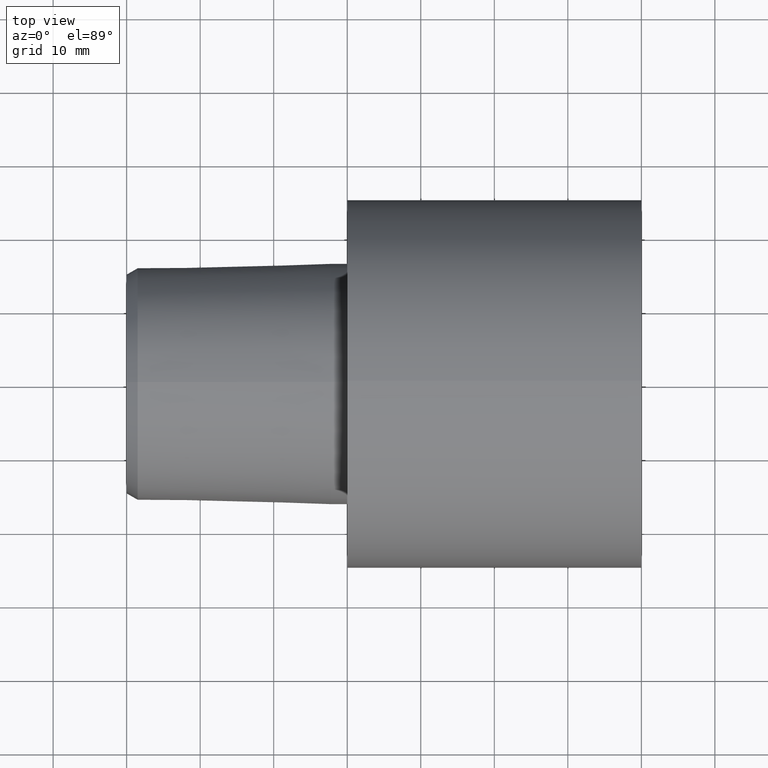
[diagram: clean part render]
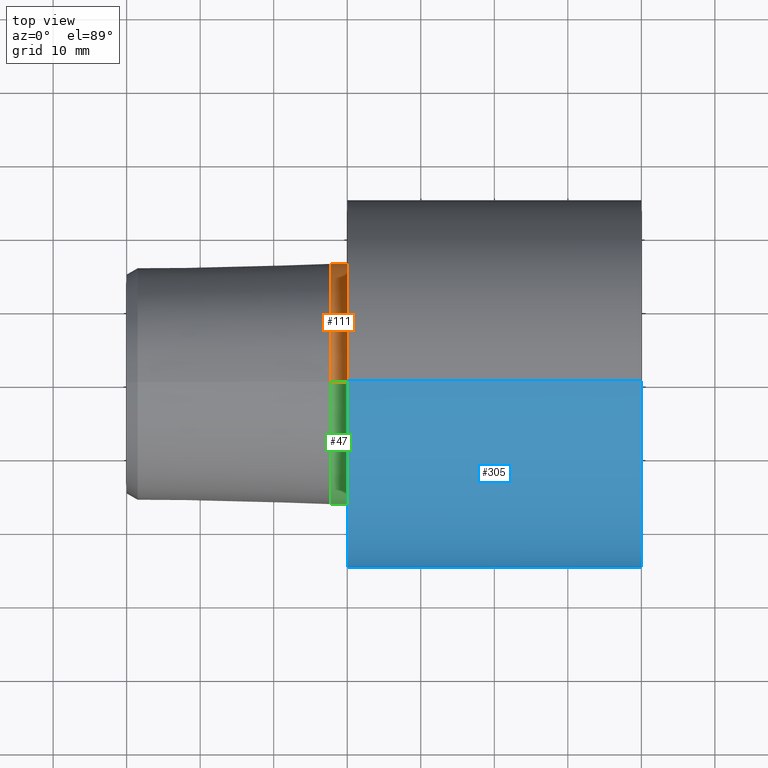
[diagram: same view with three faces highlighted in distinct colors, each labeled with its STEP entity id]
A machine part, top view with three faces highlighted in distinct colors.
Their STEP definitions:

[orange] entity #111 — the highlighted cylindrical surface (partial cylindrical patch) has radius 16.4 mm, axis along (-1, 0, 0).
#15 = DIRECTION ( 'NONE',  ( -1.000000000000000000, 0.000000000000000000, 0.000000000000000000 ) ) ;
#17 = CARTESIAN_POINT ( 'NONE',  ( -29.99999996776130118, 0.000000000000000000, 16.40000330327199762 ) ) ;
#19 = FACE_OUTER_BOUND ( 'NONE', #332, .T. ) ;
#44 = CARTESIAN_POINT ( 'NONE',  ( -29.99999996776130118, 2.008421155135807723E-15, -16.40000330327199762 ) ) ;
#58 = AXIS2_PLACEMENT_3D ( 'NONE', #252, #165, #191 ) ;
#69 = DIRECTION ( 'NONE',  ( 0.000000000000000000, 0.000000000000000000, 1.000000000000000000 ) ) ;
#72 = DIRECTION ( 'NONE',  ( 0.000000000000000000, 0.000000000000000000, 1.000000000000000000 ) ) ;
#76 = ORIENTED_EDGE ( 'NONE', *, *, #141, .T. ) ;
#82 = VERTEX_POINT ( 'NONE', #148 ) ;
#98 = VECTOR ( 'NONE', #296, 1000.000000000000000 ) ;
#111 = ADVANCED_FACE ( 'NONE', ( #19 ), #317, .T. ) ;
#122 = LINE ( 'NONE', #44, #98 ) ;
#129 = CARTESIAN_POINT ( 'NONE',  ( -2.199937517756064054, 2.008421155135807723E-15, -16.40000330327199762 ) ) ;
#141 = EDGE_CURVE ( 'NONE', #82, #306, #215, .T. ) ;
#142 = EDGE_CURVE ( 'NONE', #82, #155, #235, .T. ) ;
#148 = CARTESIAN_POINT ( 'NONE',  ( 0.000000000000000000, 0.000000000000000000, 16.40000330327199762 ) ) ;
#152 = ORIENTED_EDGE ( 'NONE', *, *, #341, .F. ) ;
#155 = VERTEX_POINT ( 'NONE', #352 ) ;
#165 = DIRECTION ( 'NONE',  ( -1.000000000000000000, 0.000000000000000000, 0.000000000000000000 ) ) ;
#172 = EDGE_CURVE ( 'NONE', #306, #197, #122, .T. ) ;
#179 = DIRECTION ( 'NONE',  ( -1.000000000000000000, 0.000000000000000000, 0.000000000000000000 ) ) ;
#191 = DIRECTION ( 'NONE',  ( 0.000000000000000000, 0.000000000000000000, 1.000000000000000000 ) ) ;
#192 = CARTESIAN_POINT ( 'NONE',  ( 0.000000000000000000, 2.008421155135807723E-15, -16.40000330327199762 ) ) ;
#193 = ORIENTED_EDGE ( 'NONE', *, *, #142, .F. ) ;
#195 = AXIS2_PLACEMENT_3D ( 'NONE', #325, #179, #69 ) ;
#197 = VERTEX_POINT ( 'NONE', #129 ) ;
#212 = DIRECTION ( 'NONE',  ( -1.000000000000000000, 0.000000000000000000, 0.000000000000000000 ) ) ;
#215 = CIRCLE ( 'NONE', #195, 16.40000330327199762 ) ;
#228 = CARTESIAN_POINT ( 'NONE',  ( -29.99999996776130118, 0.000000000000000000, 0.000000000000000000 ) ) ;
#235 = LINE ( 'NONE', #17, #283 ) ;
#252 = CARTESIAN_POINT ( 'NONE',  ( -2.199937517756064054, 0.000000000000000000, 0.000000000000000000 ) ) ;
#276 = ORIENTED_EDGE ( 'NONE', *, *, #172, .T. ) ;
#283 = VECTOR ( 'NONE', #15, 1000.000000000000000 ) ;
#290 = AXIS2_PLACEMENT_3D ( 'NONE', #228, #212, #72 ) ;
#296 = DIRECTION ( 'NONE',  ( -1.000000000000000000, 0.000000000000000000, 0.000000000000000000 ) ) ;
#306 = VERTEX_POINT ( 'NONE', #192 ) ;
#317 = CYLINDRICAL_SURFACE ( 'NONE', #290, 16.40000330327199762 ) ;
#325 = CARTESIAN_POINT ( 'NONE',  ( 0.000000000000000000, 0.000000000000000000, 0.000000000000000000 ) ) ;
#332 = EDGE_LOOP ( 'NONE', ( #76, #276, #152, #193 ) ) ;
#338 = CIRCLE ( 'NONE', #58, 16.40000330327199762 ) ;
#341 = EDGE_CURVE ( 'NONE', #155, #197, #338, .T. ) ;
#352 = CARTESIAN_POINT ( 'NONE',  ( -2.199937517756064054, 0.000000000000000000, 16.40000330327199762 ) ) ;

[blue] entity #305 — the highlighted cylindrical surface (partial cylindrical patch) has radius 24.99 mm, axis along (-1, 0, 0).
#3 = VERTEX_POINT ( 'NONE', #274 ) ;
#24 = FACE_OUTER_BOUND ( 'NONE', #167, .T. ) ;
#26 = CIRCLE ( 'NONE', #168, 24.98999997451020150 ) ;
#35 = DIRECTION ( 'NONE',  ( -1.000000000000000000, 0.000000000000000000, 0.000000000000000000 ) ) ;
#54 = CARTESIAN_POINT ( 'NONE',  ( -29.99999996776130118, 0.000000000000000000, 0.000000000000000000 ) ) ;
#56 = ORIENTED_EDGE ( 'NONE', *, *, #151, .T. ) ;
#77 = EDGE_CURVE ( 'NONE', #269, #222, #277, .T. ) ;
#86 = CARTESIAN_POINT ( 'NONE',  ( 0.000000000000000000, 0.000000000000000000, 0.000000000000000000 ) ) ;
#117 = DIRECTION ( 'NONE',  ( -1.000000000000000000, 0.000000000000000000, 0.000000000000000000 ) ) ;
#119 = CARTESIAN_POINT ( 'NONE',  ( 0.000000000000000000, 0.000000000000000000, 24.98999997451020150 ) ) ;
#123 = VERTEX_POINT ( 'NONE', #125 ) ;
#125 = CARTESIAN_POINT ( 'NONE',  ( 39.99999995919999662, 3.060392347947635560E-15, -24.98999997451020150 ) ) ;
#133 = ORIENTED_EDGE ( 'NONE', *, *, #77, .F. ) ;
#151 = EDGE_CURVE ( 'NONE', #123, #3, #26, .T. ) ;
#158 = AXIS2_PLACEMENT_3D ( 'NONE', #54, #248, #298 ) ;
#159 = DIRECTION ( 'NONE',  ( 0.000000000000000000, 0.000000000000000000, 1.000000000000000000 ) ) ;
#167 = EDGE_LOOP ( 'NONE', ( #190, #56, #217, #133 ) ) ;
#168 = AXIS2_PLACEMENT_3D ( 'NONE', #289, #117, #159 ) ;
#176 = LINE ( 'NONE', #285, #307 ) ;
#181 = LINE ( 'NONE', #291, #336 ) ;
#190 = ORIENTED_EDGE ( 'NONE', *, *, #257, .F. ) ;
#217 = ORIENTED_EDGE ( 'NONE', *, *, #227, .T. ) ;
#222 = VERTEX_POINT ( 'NONE', #119 ) ;
#224 = DIRECTION ( 'NONE',  ( 0.000000000000000000, 0.000000000000000000, 1.000000000000000000 ) ) ;
#227 = EDGE_CURVE ( 'NONE', #3, #222, #176, .T. ) ;
#243 = CARTESIAN_POINT ( 'NONE',  ( 0.000000000000000000, 3.060392347947635560E-15, -24.98999997451020150 ) ) ;
#245 = AXIS2_PLACEMENT_3D ( 'NONE', #86, #255, #224 ) ;
#246 = DIRECTION ( 'NONE',  ( -1.000000000000000000, 0.000000000000000000, 0.000000000000000000 ) ) ;
#248 = DIRECTION ( 'NONE',  ( -1.000000000000000000, 0.000000000000000000, 0.000000000000000000 ) ) ;
#255 = DIRECTION ( 'NONE',  ( -1.000000000000000000, 0.000000000000000000, 0.000000000000000000 ) ) ;
#257 = EDGE_CURVE ( 'NONE', #123, #269, #181, .T. ) ;
#269 = VERTEX_POINT ( 'NONE', #243 ) ;
#274 = CARTESIAN_POINT ( 'NONE',  ( 39.99999995919999662, 0.000000000000000000, 24.98999997451020150 ) ) ;
#275 = CYLINDRICAL_SURFACE ( 'NONE', #158, 24.98999997451020150 ) ;
#277 = CIRCLE ( 'NONE', #245, 24.98999997451020150 ) ;
#285 = CARTESIAN_POINT ( 'NONE',  ( -29.99999996776130118, 0.000000000000000000, 24.98999997451020150 ) ) ;
#289 = CARTESIAN_POINT ( 'NONE',  ( 39.99999995919999662, 0.000000000000000000, 0.000000000000000000 ) ) ;
#291 = CARTESIAN_POINT ( 'NONE',  ( -29.99999996776130118, 3.060392347947635560E-15, -24.98999997451020150 ) ) ;
#298 = DIRECTION ( 'NONE',  ( 0.000000000000000000, 0.000000000000000000, 1.000000000000000000 ) ) ;
#305 = ADVANCED_FACE ( 'NONE', ( #24 ), #275, .T. ) ;
#307 = VECTOR ( 'NONE', #35, 1000.000000000000000 ) ;
#336 = VECTOR ( 'NONE', #246, 1000.000000000000000 ) ;

[green] entity #47 — the highlighted cylindrical surface (partial cylindrical patch) has radius 16.4 mm, axis along (-1, 0, 0).
#1 = CARTESIAN_POINT ( 'NONE',  ( -29.99999996776130118, 0.000000000000000000, 0.000000000000000000 ) ) ;
#15 = DIRECTION ( 'NONE',  ( -1.000000000000000000, 0.000000000000000000, 0.000000000000000000 ) ) ;
#17 = CARTESIAN_POINT ( 'NONE',  ( -29.99999996776130118, 0.000000000000000000, 16.40000330327199762 ) ) ;
#23 = ORIENTED_EDGE ( 'NONE', *, *, #142, .T. ) ;
#43 = CIRCLE ( 'NONE', #87, 16.40000330327199762 ) ;
#44 = CARTESIAN_POINT ( 'NONE',  ( -29.99999996776130118, 2.008421155135807723E-15, -16.40000330327199762 ) ) ;
#45 = CARTESIAN_POINT ( 'NONE',  ( 0.000000000000000000, 0.000000000000000000, 0.000000000000000000 ) ) ;
#47 = ADVANCED_FACE ( 'NONE', ( #280 ), #162, .T. ) ;
#49 = DIRECTION ( 'NONE',  ( -1.000000000000000000, 0.000000000000000000, 0.000000000000000000 ) ) ;
#52 = CARTESIAN_POINT ( 'NONE',  ( -2.199937517756064054, 0.000000000000000000, 0.000000000000000000 ) ) ;
#82 = VERTEX_POINT ( 'NONE', #148 ) ;
#87 = AXIS2_PLACEMENT_3D ( 'NONE', #45, #273, #169 ) ;
#98 = VECTOR ( 'NONE', #296, 1000.000000000000000 ) ;
#107 = CIRCLE ( 'NONE', #218, 16.40000330327199762 ) ;
#122 = LINE ( 'NONE', #44, #98 ) ;
#127 = ORIENTED_EDGE ( 'NONE', *, *, #172, .F. ) ;
#129 = CARTESIAN_POINT ( 'NONE',  ( -2.199937517756064054, 2.008421155135807723E-15, -16.40000330327199762 ) ) ;
#131 = DIRECTION ( 'NONE',  ( 0.000000000000000000, 0.000000000000000000, 1.000000000000000000 ) ) ;
#140 = EDGE_LOOP ( 'NONE', ( #127, #198, #23, #194 ) ) ;
#142 = EDGE_CURVE ( 'NONE', #82, #155, #235, .T. ) ;
#148 = CARTESIAN_POINT ( 'NONE',  ( 0.000000000000000000, 0.000000000000000000, 16.40000330327199762 ) ) ;
#155 = VERTEX_POINT ( 'NONE', #352 ) ;
#162 = CYLINDRICAL_SURFACE ( 'NONE', #200, 16.40000330327199762 ) ;
#163 = DIRECTION ( 'NONE',  ( 0.000000000000000000, 0.000000000000000000, 1.000000000000000000 ) ) ;
#169 = DIRECTION ( 'NONE',  ( 0.000000000000000000, 0.000000000000000000, 1.000000000000000000 ) ) ;
#172 = EDGE_CURVE ( 'NONE', #306, #197, #122, .T. ) ;
#192 = CARTESIAN_POINT ( 'NONE',  ( 0.000000000000000000, 2.008421155135807723E-15, -16.40000330327199762 ) ) ;
#194 = ORIENTED_EDGE ( 'NONE', *, *, #329, .F. ) ;
#197 = VERTEX_POINT ( 'NONE', #129 ) ;
#198 = ORIENTED_EDGE ( 'NONE', *, *, #334, .T. ) ;
#200 = AXIS2_PLACEMENT_3D ( 'NONE', #1, #278, #131 ) ;
#218 = AXIS2_PLACEMENT_3D ( 'NONE', #52, #49, #163 ) ;
#235 = LINE ( 'NONE', #17, #283 ) ;
#273 = DIRECTION ( 'NONE',  ( -1.000000000000000000, 0.000000000000000000, 0.000000000000000000 ) ) ;
#278 = DIRECTION ( 'NONE',  ( -1.000000000000000000, 0.000000000000000000, 0.000000000000000000 ) ) ;
#280 = FACE_OUTER_BOUND ( 'NONE', #140, .T. ) ;
#283 = VECTOR ( 'NONE', #15, 1000.000000000000000 ) ;
#296 = DIRECTION ( 'NONE',  ( -1.000000000000000000, 0.000000000000000000, 0.000000000000000000 ) ) ;
#306 = VERTEX_POINT ( 'NONE', #192 ) ;
#329 = EDGE_CURVE ( 'NONE', #197, #155, #107, .T. ) ;
#334 = EDGE_CURVE ( 'NONE', #306, #82, #43, .T. ) ;
#352 = CARTESIAN_POINT ( 'NONE',  ( -2.199937517756064054, 0.000000000000000000, 16.40000330327199762 ) ) ;